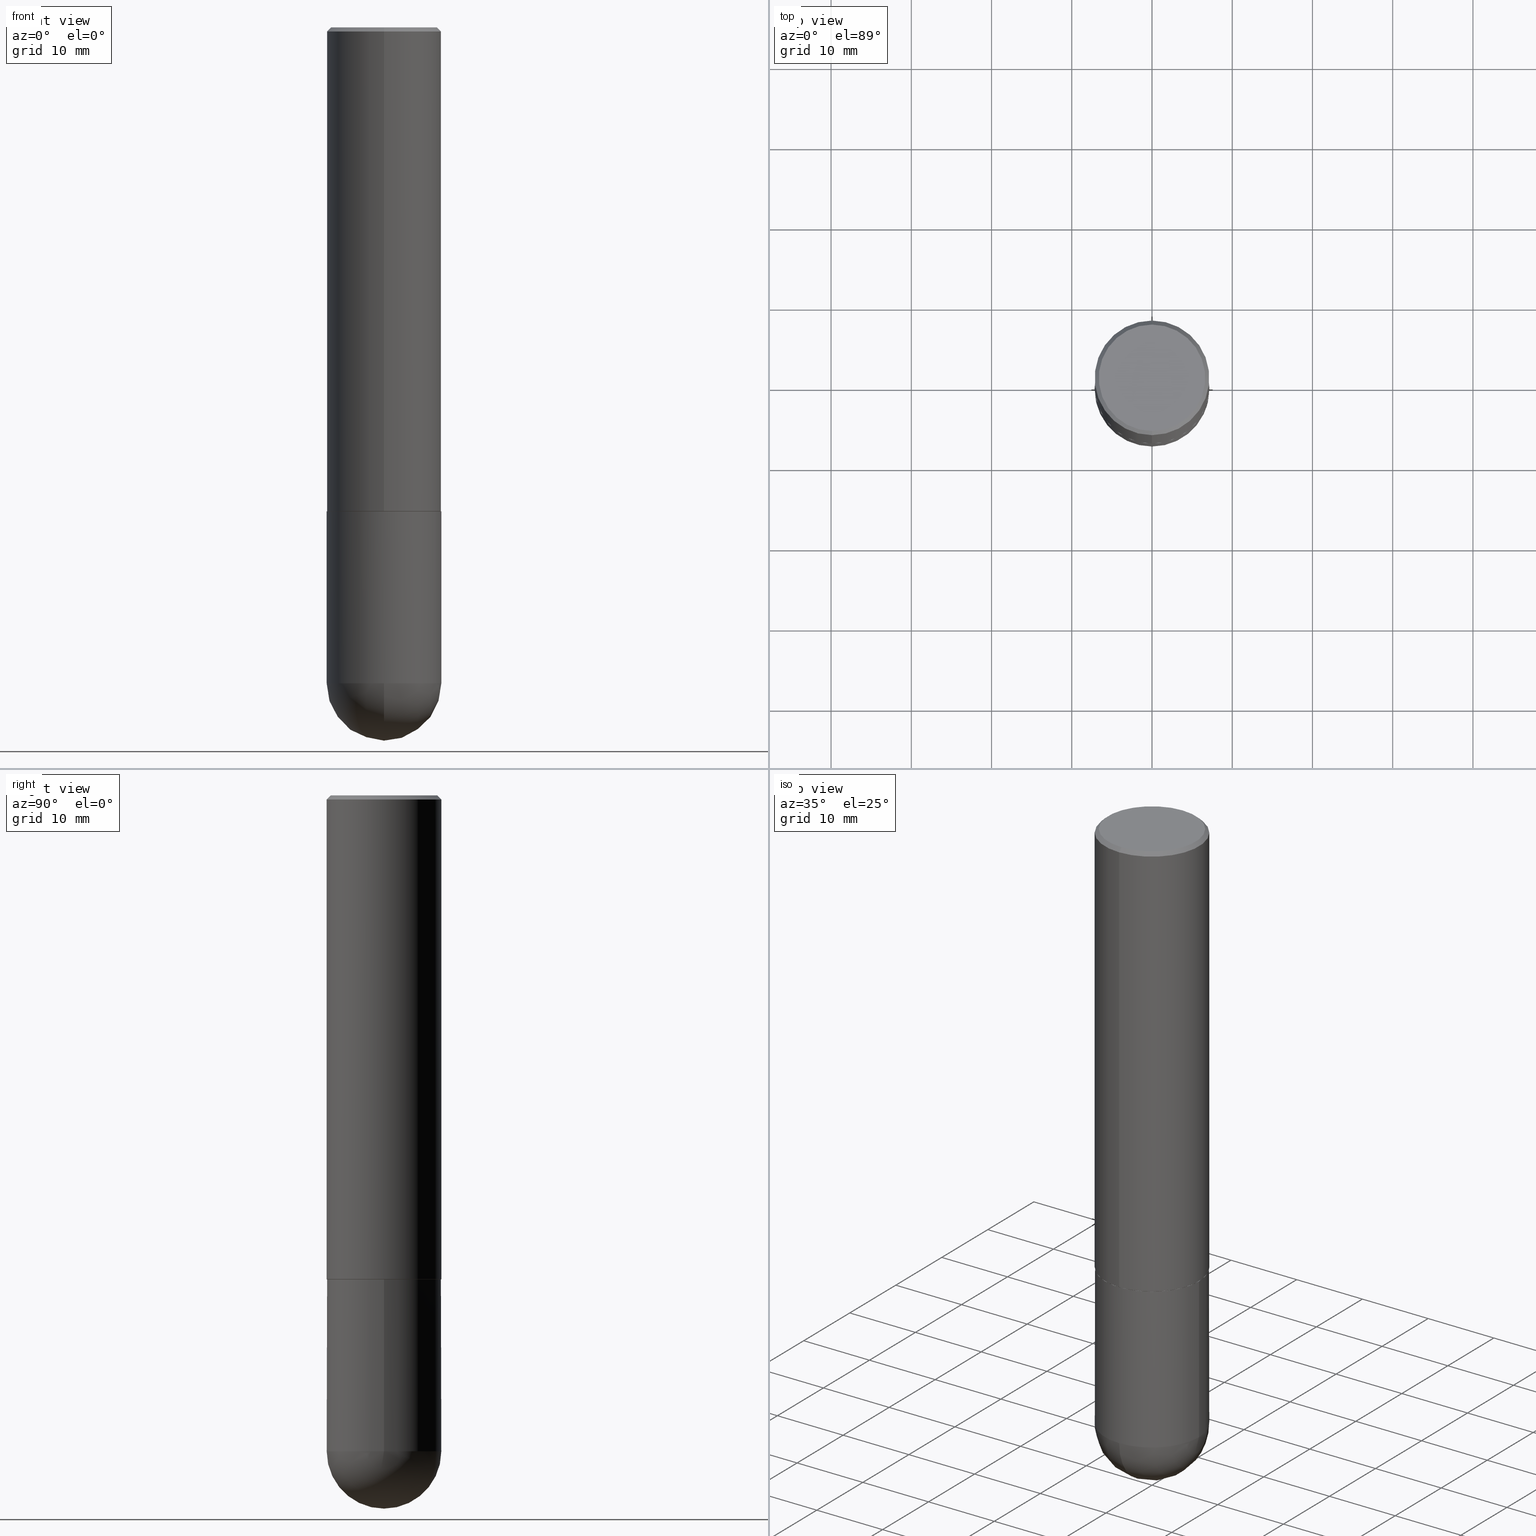
[diagram: canonical four-view strip — front | top / right | iso, engineering-drawing reading convention]
A machine part, canonical four-view strip (front | top / right | iso — engineering-drawing reading convention). The complete STEP part file that produces these views, byte-faithful:
ISO-10303-21;
HEADER;
FILE_DESCRIPTION (( 'STEP AP203' ),
    '1' );
FILE_NAME ('36847.STEP',
    '2024-02-21T19:08:04',
    ( '' ),
    ( '' ),
    'SwSTEP 2.0',
    'SolidWorks 2023',
    '' );
FILE_SCHEMA (( 'CONFIG_CONTROL_DESIGN' ));
ENDSEC;

DATA;
#1 = CARTESIAN_POINT ( 'NONE',  ( 4.382219202564076479E-45, -6.257564182083579775E-31, -1.792106157134673927E-16 ) ) ;
#2 = VERTEX_POINT ( 'NONE', #350 ) ;
#3 = AXIS2_PLACEMENT_3D ( 'NONE', #206, #332, #47 ) ;
#4 = ORIENTED_EDGE ( 'NONE', *, *, #392, .T. ) ;
#5 = AXIS2_PLACEMENT_3D ( 'NONE', #27, #259, #374 ) ;
#6 = EDGE_CURVE ( 'NONE', #20, #155, #185, .T. ) ;
#7 = CARTESIAN_POINT ( 'NONE',  ( 7.540232941994521053E-29, -1.171238792754142562E-14, -3.218749999999999556 ) ) ;
#8 = DIRECTION ( 'NONE',  ( -2.445468806185136597E-29, 3.491481338843145583E-15, 1.000000000000000000 ) ) ;
#9 = MECHANICAL_CONTEXT ( 'NONE', #108, 'mechanical' ) ;
#10 = VECTOR ( 'NONE', #120, 39.37007874015748143 ) ;
#11 =( NAMED_UNIT ( * ) PLANE_ANGLE_UNIT ( ) SI_UNIT ( $, .RADIAN. ) );
#12 = SPHERICAL_SURFACE ( 'NONE', #109, 0.2812500000000003331 ) ;
#13 = AXIS2_PLACEMENT_3D ( 'NONE', #270, #388, #236 ) ;
#14 = FACE_OUTER_BOUND ( 'NONE', #293, .T. ) ;
#15 = COORDINATED_UNIVERSAL_TIME_OFFSET ( 5, 0, .BEHIND. ) ;
#16 = CARTESIAN_POINT ( 'NONE',  ( 7.540232941994521053E-29, -1.171238792754142562E-14, -3.218749999999999556 ) ) ;
#17 = EDGE_CURVE ( 'NONE', #129, #151, #356, .T. ) ;
#18 = ORIENTED_EDGE ( 'NONE', *, *, #29, .T. ) ;
#19 = CARTESIAN_POINT ( 'NONE',  ( -1.956975290421518122E-15, -0.2802500000000083258, -2.374999999999998668 ) ) ;
#20 = VERTEX_POINT ( 'NONE', #198 ) ;
#21 = PERSON_AND_ORGANIZATION ( #82, #148 ) ;
#22 = CONICAL_SURFACE ( 'NONE', #57, 0.2802499999999999991, 0.7853981633975678500 ) ;
#23 = PERSON_AND_ORGANIZATION ( #82, #148 ) ;
#24 = CIRCLE ( 'NONE', #5, 0.2812500000000000555 ) ;
#25 = CARTESIAN_POINT ( 'NONE',  ( 1.963958253099340610E-15, 0.2812499999999886757, -3.218750000000000888 ) ) ;
#26 = ORIENTED_EDGE ( 'NONE', *, *, #314, .F. ) ;
#27 = CARTESIAN_POINT ( 'NONE',  ( 4.890579930343684363E-31, -6.983474898706407953E-17, -0.02000000000000006287 ) ) ;
#28 = VERTEX_POINT ( 'NONE', #324 ) ;
#29 = EDGE_CURVE ( 'NONE', #147, #383, #246, .T. ) ;
#30 = DIRECTION ( 'NONE',  ( -2.445289965171834089E-29, 3.491737449353193105E-15, 1.000000000000000000 ) ) ;
#31 = ORIENTED_EDGE ( 'NONE', *, *, #197, .T. ) ;
#32 = CC_DESIGN_PERSON_AND_ORGANIZATION_ASSIGNMENT ( #23, #283, ( #390 ) ) ;
#33 = LINE ( 'NONE', #252, #174 ) ;
#34 = APPROVAL_PERSON_ORGANIZATION ( #244, #321, #124 ) ;
#35 = EDGE_LOOP ( 'NONE', ( #37, #93, #64, #117 ) ) ;
#36 = CARTESIAN_POINT ( 'NONE',  ( 0.2812500000000000555, -1.963958253099262907E-15, 1.371424718192607012E-29 ) ) ;
#37 = ORIENTED_EDGE ( 'NONE', *, *, #392, .F. ) ;
#38 = DIRECTION ( 'NONE',  ( 1.000000000000000000, -6.982962677686268288E-15, 0.000000000000000000 ) ) ;
#39 = CARTESIAN_POINT ( 'NONE',  ( 5.807563667283104946E-29, -8.292876442213832244E-15, -2.374999999999999556 ) ) ;
#40 = DIRECTION ( 'NONE',  ( -2.445468806185136877E-29, 3.491481338843145188E-15, 1.000000000000000000 ) ) ;
#41 = CC_DESIGN_APPROVAL ( #95, ( #352 ) ) ;
#42 = ADVANCED_FACE ( 'NONE', ( #102 ), #12, .T. ) ;
#43 = ADVANCED_FACE ( 'NONE', ( #412 ), #290, .T. ) ;
#44 =( NAMED_UNIT ( * ) SI_UNIT ( $, .STERADIAN. ) SOLID_ANGLE_UNIT ( ) );
#45 = CIRCLE ( 'NONE', #58, 0.2812500000000000555 ) ;
#46 = CARTESIAN_POINT ( 'NONE',  ( -1.860910081895528315E-15, -0.2612500000000002043, 7.330057929300550377E-16 ) ) ;
#47 = DIRECTION ( 'NONE',  ( 6.982962677686265133E-15, 1.000000000000000000, 0.000000000000000000 ) ) ;
#48 = EDGE_CURVE ( 'NONE', #195, #224, #336, .T. ) ;
#49 = APPROVAL_ROLE ( '' ) ;
#50 = DIRECTION ( 'NONE',  ( 6.982962677686265133E-15, 1.000000000000000000, -3.490694658571002410E-15 ) ) ;
#51 = LOCAL_TIME ( 14, 8, 4.000000000000000000, #398 ) ;
#52 = APPROVAL_STATUS ( 'not_yet_approved' ) ;
#53 = APPROVAL ( #111, 'UNSPECIFIED' ) ;
#54 = CARTESIAN_POINT ( 'NONE',  ( 5.807563667283104946E-29, -8.292876442213832244E-15, -2.374999999999999556 ) ) ;
#55 = DATE_AND_TIME ( #340, #51 ) ;
#56 = DIRECTION ( 'NONE',  ( -6.982962677686265133E-15, -1.000000000000000000, 3.885294924322502955E-15 ) ) ;
#57 = AXIS2_PLACEMENT_3D ( 'NONE', #54, #90, #291 ) ;
#58 = AXIS2_PLACEMENT_3D ( 'NONE', #169, #191, #38 ) ;
#59 = DIRECTION ( 'NONE',  ( -6.982962677686265133E-15, -1.000000000000000000, 3.491737449353193105E-15 ) ) ;
#60 = ADVANCED_FACE ( 'NONE', ( #14 ), #277, .T. ) ;
#61 = APPROVAL_ROLE ( '' ) ;
#62 = DATE_AND_TIME ( #345, #268 ) ;
#63 = FACE_OUTER_BOUND ( 'NONE', #320, .T. ) ;
#64 = ORIENTED_EDGE ( 'NONE', *, *, #348, .T. ) ;
#65 = DIRECTION ( 'NONE',  ( -2.445289965171834089E-29, 3.491737449353193105E-15, 1.000000000000000000 ) ) ;
#66 = ORIENTED_EDGE ( 'NONE', *, *, #106, .F. ) ;
#67 = CARTESIAN_POINT ( 'NONE',  ( 0.000000000000000000, 0.000000000000000000, 0.000000000000000000 ) ) ;
#68 = ORIENTED_EDGE ( 'NONE', *, *, #232, .F. ) ;
#69 = CARTESIAN_POINT ( 'NONE',  ( 0.000000000000000000, 0.000000000000000000, 0.000000000000000000 ) ) ;
#70 = DIRECTION ( 'NONE',  ( 1.000000000000000000, -6.982962677686266711E-15, 0.000000000000000000 ) ) ;
#71 = DIRECTION ( 'NONE',  ( 2.438088387897960049E-29, -3.491481338843145188E-15, -1.000000000000000000 ) ) ;
#72 =( CONVERSION_BASED_UNIT ( 'INCH', #269 ) LENGTH_UNIT ( ) NAMED_UNIT ( #406 ) );
#73 = VECTOR ( 'NONE', #94, 39.37007874015748854 ) ;
#74 = PERSON_AND_ORGANIZATION_ROLE ( 'design_owner' ) ;
#75 = CC_DESIGN_PERSON_AND_ORGANIZATION_ASSIGNMENT ( #342, #153, ( #352 ) ) ;
#76 = SPHERICAL_SURFACE ( 'NONE', #372, 0.2812500000000003331 ) ;
#77 = DIRECTION ( 'NONE',  ( 2.445289965171834089E-29, -3.491737449353193105E-15, -1.000000000000000000 ) ) ;
#78 = ADVANCED_FACE ( 'NONE', ( #203 ), #330, .F. ) ;
#79 = SHAPE_DEFINITION_REPRESENTATION ( #164, #121 ) ;
#80 = EDGE_LOOP ( 'NONE', ( #400, #375, #242, #243, #188 ) ) ;
#81 = CARTESIAN_POINT ( 'NONE',  ( 7.871352719908407300E-29, -1.123820555940137375E-14, -3.218749999999999556 ) ) ;
#82 = PERSON ( 'UNSPECIFIED', 'UNSPECIFIED', 'UNSPECIFIED', ('UNSPECIFIED'), ('UNSPECIFIED'), ('UNSPECIFIED') ) ;
#83 = PERSON_AND_ORGANIZATION_ROLE ( 'creator' ) ;
#84 = CARTESIAN_POINT ( 'NONE',  ( 5.807563667283104946E-29, -8.292876442213832244E-15, -2.374999999999999556 ) ) ;
#85 = PERSON_AND_ORGANIZATION_ROLE ( 'design_supplier' ) ;
#86 = CARTESIAN_POINT ( 'NONE',  ( 7.871352719908407300E-29, -1.123820555940137375E-14, -3.218749999999999556 ) ) ;
#87 = EDGE_LOOP ( 'NONE', ( #322, #18, #373, #126 ) ) ;
#88 = CIRCLE ( 'NONE', #247, 0.2812500000000000555 ) ;
#89 =( GEOMETRIC_REPRESENTATION_CONTEXT ( 3 ) GLOBAL_UNCERTAINTY_ASSIGNED_CONTEXT ( ( #318 ) ) GLOBAL_UNIT_ASSIGNED_CONTEXT ( ( #72, #11, #44 ) ) REPRESENTATION_CONTEXT ( 'NONE', 'WORKASPACE' ) );
#90 = DIRECTION ( 'NONE',  ( -2.445289965171834089E-29, 3.491737449353193105E-15, 1.000000000000000000 ) ) ;
#91 = ORIENTED_EDGE ( 'NONE', *, *, #314, .T. ) ;
#92 = DIRECTION ( 'NONE',  ( -6.982962677686265922E-15, -1.000000000000000000, 3.899158599342391639E-15 ) ) ;
#93 = ORIENTED_EDGE ( 'NONE', *, *, #326, .F. ) ;
#94 = DIRECTION ( 'NONE',  ( 4.937700262164543309E-15, 0.7071067811865444641, -0.7071067811865503483 ) ) ;
#95 = APPROVAL ( #282, 'UNSPECIFIED' ) ;
#96 = AXIS2_PLACEMENT_3D ( 'NONE', #133, #261, #380 ) ;
#97 = FACE_OUTER_BOUND ( 'NONE', #307, .T. ) ;
#98 = CONICAL_SURFACE ( 'NONE', #210, 0.2812500000000000555, 0.7853981633974476129 ) ;
#99 = ORIENTED_EDGE ( 'NONE', *, *, #48, .T. ) ;
#100 = DIRECTION ( 'NONE',  ( 1.000000000000000000, -6.982962677686268288E-15, 0.000000000000000000 ) ) ;
#101 = ORIENTED_EDGE ( 'NONE', *, *, #381, .T. ) ;
#102 = FACE_OUTER_BOUND ( 'NONE', #251, .T. ) ;
#103 = FACE_OUTER_BOUND ( 'NONE', #287, .T. ) ;
#104 = AXIS2_PLACEMENT_3D ( 'NONE', #112, #77, #50 ) ;
#105 = MANIFOLD_SOLID_BREP ( 'Body-Move/Copy2[1]', #389 ) ;
#106 = EDGE_CURVE ( 'NONE', #337, #216, #379, .T. ) ;
#107 = DIRECTION ( 'NONE',  ( -6.982962677686265133E-15, -1.000000000000000000, 3.885294924322502955E-15 ) ) ;
#108 = APPLICATION_CONTEXT ( 'configuration controlled 3d designs of mechanical parts and assemblies' ) ;
#109 = AXIS2_PLACEMENT_3D ( 'NONE', #16, #140, #180 ) ;
#110 = VECTOR ( 'NONE', #299, 39.37007874015748143 ) ;
#111 = APPROVAL_STATUS ( 'not_yet_approved' ) ;
#112 = CARTESIAN_POINT ( 'NONE',  ( 4.890579930343684363E-31, -6.983474898706407953E-17, -0.02000000000000006287 ) ) ;
#113 = ORIENTED_EDGE ( 'NONE', *, *, #361, .F. ) ;
#114 = ORIENTED_EDGE ( 'NONE', *, *, #292, .F. ) ;
#115 = CALENDAR_DATE ( 2024, 21, 2 ) ;
#116 = CARTESIAN_POINT ( 'NONE',  ( -1.998401444325206042E-15, -0.2812500000000116573, -3.218749999999998668 ) ) ;
#117 = ORIENTED_EDGE ( 'NONE', *, *, #241, .T. ) ;
#118 = CIRCLE ( 'NONE', #297, 0.2802499999999999991 ) ;
#119 = APPROVAL_PERSON_ORGANIZATION ( #334, #53, #49 ) ;
#120 = DIRECTION ( 'NONE',  ( -2.445289965171834089E-29, 3.491737449353193105E-15, 1.000000000000000000 ) ) ;
#121 = ADVANCED_BREP_SHAPE_REPRESENTATION ( '36847', ( #105, #377, #386 ), #89 ) ;
#122 = CYLINDRICAL_SURFACE ( 'NONE', #168, 0.2812500000000000555 ) ;
#123 = APPROVAL_DATE_TIME ( #362, #95 ) ;
#124 = APPROVAL_ROLE ( '' ) ;
#125 = DIRECTION ( 'NONE',  ( 2.445289965171834089E-29, -3.491737449353193105E-15, -1.000000000000000000 ) ) ;
#126 = ORIENTED_EDGE ( 'NONE', *, *, #139, .F. ) ;
#127 = AXIS2_PLACEMENT_3D ( 'NONE', #69, #162, #294 ) ;
#128 = DIRECTION ( 'NONE',  ( 1.000000000000000000, -6.982962677686268288E-15, 0.000000000000000000 ) ) ;
#129 = VERTEX_POINT ( 'NONE', #182 ) ;
#130 = LINE ( 'NONE', #36, #186 ) ;
#131 = ORIENTED_EDGE ( 'NONE', *, *, #6, .F. ) ;
#132 = PRODUCT_DEFINITION ( 'UNKNOWN', '', #390, #159 ) ;
#133 = CARTESIAN_POINT ( 'NONE',  ( 4.890579930343684363E-31, -6.983474898706407953E-17, -0.02000000000000006287 ) ) ;
#134 = CARTESIAN_POINT ( 'NONE',  ( 0.2812500000000000555, -1.172919512267618602E-14, -3.218749999999999556 ) ) ;
#135 = ORIENTED_EDGE ( 'NONE', *, *, #361, .T. ) ;
#136 = DIRECTION ( 'NONE',  ( -1.000000000000000000, 6.982962677686265922E-15, -4.876176775795935793E-29 ) ) ;
#137 = AXIS2_PLACEMENT_3D ( 'NONE', #39, #257, #220 ) ;
#138 = AXIS2_PLACEMENT_3D ( 'NONE', #221, #192, #279 ) ;
#139 = EDGE_CURVE ( 'NONE', #224, #195, #209, .T. ) ;
#140 = DIRECTION ( 'NONE',  ( -1.000000000000000000, 6.982962677686265922E-15, -4.883557194083112901E-29 ) ) ;
#141 = CC_DESIGN_SECURITY_CLASSIFICATION ( #352, ( #390 ) ) ;
#142 = EDGE_CURVE ( 'NONE', #404, #2, #256, .T. ) ;
#143 = CALENDAR_DATE ( 2024, 21, 2 ) ;
#144 = ORIENTED_EDGE ( 'NONE', *, *, #197, .F. ) ;
#145 = APPROVAL_DATE_TIME ( #249, #53 ) ;
#146 = DIRECTION ( 'NONE',  ( -4.937700262165138110E-15, -0.7071067811866296182, 0.7071067811864654162 ) ) ;
#147 = VERTEX_POINT ( 'NONE', #319 ) ;
#148 = ORGANIZATION ( 'UNSPECIFIED', 'UNSPECIFIED', '' ) ;
#149 = DATE_AND_TIME ( #115, #301 ) ;
#150 = DIRECTION ( 'NONE',  ( -2.445468806185136597E-29, 3.491481338843145583E-15, 1.000000000000000000 ) ) ;
#151 = VERTEX_POINT ( 'NONE', #187 ) ;
#152 = ADVANCED_FACE ( 'NONE', ( #343 ), #238, .T. ) ;
#153 = PERSON_AND_ORGANIZATION_ROLE ( 'classification_officer' ) ;
#154 = FACE_OUTER_BOUND ( 'NONE', #355, .T. ) ;
#155 = VERTEX_POINT ( 'NONE', #157 ) ;
#156 = ADVANCED_FACE ( 'NONE', ( #154 ), #306, .F. ) ;
#157 = CARTESIAN_POINT ( 'NONE',  ( 1.963958253099263301E-15, 0.2812499999999999445, -0.02000000000000104472 ) ) ;
#158 = ORIENTED_EDGE ( 'NONE', *, *, #381, .F. ) ;
#159 = DESIGN_CONTEXT ( 'detailed design', #222, 'design' ) ;
#160 = DIRECTION ( 'NONE',  ( 6.982962677686265922E-15, 1.000000000000000000, -3.491737449353193105E-15 ) ) ;
#161 = ORIENTED_EDGE ( 'NONE', *, *, #241, .F. ) ;
#162 = DIRECTION ( 'NONE',  ( -2.445289965171834089E-29, 3.491737449353193105E-15, 1.000000000000000000 ) ) ;
#163 = ORIENTED_EDGE ( 'NONE', *, *, #142, .F. ) ;
#164 = PRODUCT_DEFINITION_SHAPE ( 'NONE', 'NONE',  #132 ) ;
#165 = CARTESIAN_POINT ( 'NONE',  ( 1.963958253099263301E-15, 0.2812499999999999445, -0.02000000000000104472 ) ) ;
#166 = EDGE_LOOP ( 'NONE', ( #158, #305, #193, #113 ) ) ;
#167 = ADVANCED_FACE ( 'NONE', ( #63 ), #122, .T. ) ;
#168 = AXIS2_PLACEMENT_3D ( 'NONE', #212, #403, #215 ) ;
#169 = CARTESIAN_POINT ( 'NONE',  ( 7.871352719908407300E-29, -1.123820555940137375E-14, -3.218749999999999556 ) ) ;
#170 = AXIS2_PLACEMENT_3D ( 'NONE', #354, #71, #136 ) ;
#171 = CC_DESIGN_PERSON_AND_ORGANIZATION_ASSIGNMENT ( #308, #83, ( #132 ) ) ;
#172 = CARTESIAN_POINT ( 'NONE',  ( -0.2812500000000000555, 1.998401444325282167E-15, -1.383450494134192269E-29 ) ) ;
#173 = ADVANCED_FACE ( 'NONE', ( #405 ), #22, .T. ) ;
#174 = VECTOR ( 'NONE', #367, 39.37007874015748143 ) ;
#175 = COORDINATED_UNIVERSAL_TIME_OFFSET ( 5, 0, .BEHIND. ) ;
#176 = CARTESIAN_POINT ( 'NONE',  ( 5.805118377317934048E-29, -8.289384704764479021E-15, -2.373999999999999666 ) ) ;
#177 = AXIS2_PLACEMENT_3D ( 'NONE', #84, #30, #286 ) ;
#178 = VECTOR ( 'NONE', #366, 39.37007874015748143 ) ;
#179 = ORIENTED_EDGE ( 'NONE', *, *, #239, .T. ) ;
#180 = DIRECTION ( 'NONE',  ( 6.982962677686265922E-15, 1.000000000000000000, -3.885294924322502955E-15 ) ) ;
#181 = ORIENTED_EDGE ( 'NONE', *, *, #329, .T. ) ;
#182 = CARTESIAN_POINT ( 'NONE',  ( 0.2812500000000000000, -1.025622643285173184E-14, -2.374999999999999556 ) ) ;
#183 = LINE ( 'NONE', #19, #274 ) ;
#184 = CC_DESIGN_PERSON_AND_ORGANIZATION_ASSIGNMENT ( #402, #85, ( #390 ) ) ;
#185 = CIRCLE ( 'NONE', #96, 0.2812500000000000555 ) ;
#186 = VECTOR ( 'NONE', #40, 39.37007874015748143 ) ;
#187 = CARTESIAN_POINT ( 'NONE',  ( -0.2812500000000000000, -7.766835425251639371E-15, -2.374999999999999556 ) ) ;
#188 = ORIENTED_EDGE ( 'NONE', *, *, #202, .T. ) ;
#189 = DIRECTION ( 'NONE',  ( -2.445468806185136597E-29, 3.491481338843145583E-15, 1.000000000000000000 ) ) ;
#190 = ORIENTED_EDGE ( 'NONE', *, *, #142, .T. ) ;
#192 = DIRECTION ( 'NONE',  ( -2.445468806185136597E-29, 3.491481338843145583E-15, 1.000000000000000000 ) ) ;
#191 = DIRECTION ( 'NONE',  ( -2.445468806185136597E-29, 3.491481338843145583E-15, 1.000000000000000000 ) ) ;
#193 = ORIENTED_EDGE ( 'NONE', *, *, #202, .F. ) ;
#194 = CYLINDRICAL_SURFACE ( 'NONE', #127, 0.2812500000000001665 ) ;
#195 = VERTEX_POINT ( 'NONE', #255 ) ;
#196 = CARTESIAN_POINT ( 'NONE',  ( 8.240046819675677659E-29, -1.267714545847805119E-14, -3.500000000000000000 ) ) ;
#197 = EDGE_CURVE ( 'NONE', #383, #147, #118, .T. ) ;
#198 = CARTESIAN_POINT ( 'NONE',  ( -1.929515061873242857E-15, -0.2812500000000001110, -0.01999999999999908101 ) ) ;
#199 = AXIS2_PLACEMENT_3D ( 'NONE', #219, #346, #56 ) ;
#200 = AXIS2_PLACEMENT_3D ( 'NONE', #229, #353, #70 ) ;
#201 = CYLINDRICAL_SURFACE ( 'NONE', #240, 0.2812500000000000555 ) ;
#202 = EDGE_CURVE ( 'NONE', #347, #216, #344, .T. ) ;
#203 = FACE_OUTER_BOUND ( 'NONE', #395, .T. ) ;
#204 = APPLICATION_PROTOCOL_DEFINITION ( 'international standard', 'config_control_design', 1994, #108 ) ;
#205 = AXIS2_PLACEMENT_3D ( 'NONE', #176, #304, #107 ) ;
#206 = CARTESIAN_POINT ( 'NONE',  ( 7.540232941994521053E-29, -1.171238792754142562E-14, -3.218749999999999556 ) ) ;
#207 = DIRECTION ( 'NONE',  ( -1.000000000000000000, 6.982962677686265922E-15, -4.883557194083112901E-29 ) ) ;
#208 = DATE_TIME_ROLE ( 'classification_date' ) ;
#209 = CIRCLE ( 'NONE', #199, 0.2812500000000003331 ) ;
#210 = AXIS2_PLACEMENT_3D ( 'NONE', #369, #125, #341 ) ;
#211 = ORIENTED_EDGE ( 'NONE', *, *, #6, .T. ) ;
#212 = CARTESIAN_POINT ( 'NONE',  ( 0.000000000000000000, 0.000000000000000000, 0.000000000000000000 ) ) ;
#213 = FACE_OUTER_BOUND ( 'NONE', #80, .T. ) ;
#214 = SECURITY_CLASSIFICATION_LEVEL ( 'unclassified' ) ;
#215 = DIRECTION ( 'NONE',  ( 1.000000000000000000, -6.982962677686266711E-15, 4.876176775795935232E-29 ) ) ;
#216 = VERTEX_POINT ( 'NONE', #25 ) ;
#217 = AXIS2_PLACEMENT_3D ( 'NONE', #339, #312, #59 ) ;
#218 = APPROVAL_PERSON_ORGANIZATION ( #21, #95, #61 ) ;
#219 = CARTESIAN_POINT ( 'NONE',  ( 5.805118377317934048E-29, -8.289384704764479021E-15, -2.373999999999999666 ) ) ;
#220 = DIRECTION ( 'NONE',  ( -6.982962677686265922E-15, -1.000000000000000000, 3.899158599342391639E-15 ) ) ;
#221 = CARTESIAN_POINT ( 'NONE',  ( 5.807988414689698296E-29, -8.292268179752468540E-15, -2.374999999999999556 ) ) ;
#222 = APPLICATION_CONTEXT ( 'configuration controlled 3d designs of mechanical parts and assemblies' ) ;
#223 = PRODUCT ( '36847', '36847', '', ( #9 ) ) ;
#224 = VERTEX_POINT ( 'NONE', #408 ) ;
#225 = CARTESIAN_POINT ( 'NONE',  ( 7.871352719908407300E-29, -1.123820555940137375E-14, -3.218749999999999556 ) ) ;
#226 = ORIENTED_EDGE ( 'NONE', *, *, #17, .T. ) ;
#227 = CC_DESIGN_APPROVAL ( #53, ( #132 ) ) ;
#228 = CARTESIAN_POINT ( 'NONE',  ( -1.929515061873242857E-15, -0.2812500000000001110, -0.01999999999999908101 ) ) ;
#229 = CARTESIAN_POINT ( 'NONE',  ( 5.807988414689698296E-29, -8.292268179752468540E-15, -2.374999999999999556 ) ) ;
#230 = CARTESIAN_POINT ( 'NONE',  ( -1.956975290421518122E-15, -0.2802500000000083258, -2.374999999999998668 ) ) ;
#231 = VERTEX_POINT ( 'NONE', #116 ) ;
#232 = EDGE_CURVE ( 'NONE', #216, #28, #88, .T. ) ;
#233 = CIRCLE ( 'NONE', #138, 0.2812500000000000000 ) ;
#234 = DIRECTION ( 'NONE',  ( -2.445289965171834089E-29, 3.491737449353193105E-15, 1.000000000000000000 ) ) ;
#235 = DIRECTION ( 'NONE',  ( 0.000000000000000000, 0.000000000000000000, 1.000000000000000000 ) ) ;
#236 = DIRECTION ( 'NONE',  ( -6.982962677686265922E-15, -1.000000000000000000, 3.491737449353193105E-15 ) ) ;
#237 = PERSON_AND_ORGANIZATION ( #82, #148 ) ;
#238 = CONICAL_SURFACE ( 'NONE', #177, 0.2802499999999999991, 0.7853981633975678500 ) ;
#239 = EDGE_CURVE ( 'NONE', #195, #20, #284, .T. ) ;
#240 = AXIS2_PLACEMENT_3D ( 'NONE', #67, #410, #378 ) ;
#241 = EDGE_CURVE ( 'NONE', #155, #20, #24, .T. ) ;
#242 = ORIENTED_EDGE ( 'NONE', *, *, #17, .F. ) ;
#243 = ORIENTED_EDGE ( 'NONE', *, *, #329, .F. ) ;
#244 = PERSON_AND_ORGANIZATION ( #82, #148 ) ;
#245 = CARTESIAN_POINT ( 'NONE',  ( -1.963958253099263696E-15, -0.2812500000000001665, 9.820511576305861032E-16 ) ) ;
#246 = CIRCLE ( 'NONE', #137, 0.2802499999999999991 ) ;
#247 = AXIS2_PLACEMENT_3D ( 'NONE', #86, #150, #128 ) ;
#248 = CC_DESIGN_DATE_AND_TIME_ASSIGNMENT ( #62, #208, ( #352 ) ) ;
#249 = DATE_AND_TIME ( #278, #357 ) ;
#250 = LINE ( 'NONE', #399, #10 ) ;
#251 = EDGE_LOOP ( 'NONE', ( #66, #101, #26, #68 ) ) ;
#252 = CARTESIAN_POINT ( 'NONE',  ( 1.991296016967738351E-15, 0.2802499999999917280, -2.375000000000000888 ) ) ;
#253 = ORIENTED_EDGE ( 'NONE', *, *, #292, .T. ) ;
#254 = COORDINATED_UNIVERSAL_TIME_OFFSET ( 5, 0, .BEHIND. ) ;
#255 = CARTESIAN_POINT ( 'NONE',  ( -1.963958253099206503E-15, -0.2812500000000086042, -2.373999999999998334 ) ) ;
#256 = CIRCLE ( 'NONE', #217, 0.2612500000000002043 ) ;
#257 = DIRECTION ( 'NONE',  ( -2.445289965171834089E-29, 3.491737449353193105E-15, 1.000000000000000000 ) ) ;
#258 = CIRCLE ( 'NONE', #365, 0.2812500000000000555 ) ;
#259 = DIRECTION ( 'NONE',  ( -2.445289965171834089E-29, 3.491737449353193105E-15, 1.000000000000000000 ) ) ;
#260 = EDGE_LOOP ( 'NONE', ( #31, #393, #411, #264 ) ) ;
#261 = DIRECTION ( 'NONE',  ( -2.445289965171834089E-29, 3.491737449353193105E-15, 1.000000000000000000 ) ) ;
#262 = EDGE_CURVE ( 'NONE', #383, #195, #183, .T. ) ;
#263 = DIRECTION ( 'NONE',  ( -1.000000000000000000, 7.105427357601001070E-15, -4.926315508542082329E-29 ) ) ;
#264 = ORIENTED_EDGE ( 'NONE', *, *, #262, .F. ) ;
#265 = DIRECTION ( 'NONE',  ( -7.105427357601001859E-15, -1.000000000000000000, 0.000000000000000000 ) ) ;
#266 = LINE ( 'NONE', #228, #310 ) ;
#267 = CLOSED_SHELL ( 'NONE', ( #152, #60, #276, #43, #396, #173, #78, #156 ) ) ;
#268 = LOCAL_TIME ( 14, 8, 4.000000000000000000, #254 ) ;
#269 = LENGTH_MEASURE_WITH_UNIT ( LENGTH_MEASURE( 0.02539999999999999897 ), #300 );
#270 = CARTESIAN_POINT ( 'NONE',  ( 5.807563667283104946E-29, -8.292876442213832244E-15, -2.374999999999999556 ) ) ;
#271 = EDGE_CURVE ( 'NONE', #147, #224, #33, .T. ) ;
#272 = APPLICATION_PROTOCOL_DEFINITION ( 'international standard', 'config_control_design', 1994, #222 ) ;
#273 = AXIS2_PLACEMENT_3D ( 'NONE', #81, #189, #316 ) ;
#274 = VECTOR ( 'NONE', #146, 39.37007874015748143 ) ;
#275 = CARTESIAN_POINT ( 'NONE',  ( 0.000000000000000000, 0.000000000000000000, 0.000000000000000000 ) ) ;
#276 = ADVANCED_FACE ( 'NONE', ( #309 ), #98, .T. ) ;
#277 = CYLINDRICAL_SURFACE ( 'NONE', #397, 0.2812500000000001665 ) ;
#278 = CALENDAR_DATE ( 2024, 21, 2 ) ;
#279 = DIRECTION ( 'NONE',  ( 1.000000000000000000, -6.982962677686266711E-15, 0.000000000000000000 ) ) ;
#280 = AXIS2_PLACEMENT_3D ( 'NONE', #7, #263, #265 ) ;
#281 = ORIENTED_EDGE ( 'NONE', *, *, #29, .F. ) ;
#282 = APPROVAL_STATUS ( 'not_yet_approved' ) ;
#283 = PERSON_AND_ORGANIZATION_ROLE ( 'creator' ) ;
#284 = LINE ( 'NONE', #245, #178 ) ;
#285 = DATE_TIME_ROLE ( 'creation_date' ) ;
#286 = DIRECTION ( 'NONE',  ( -6.982962677686265922E-15, -1.000000000000000000, 3.899158599342391639E-15 ) ) ;
#287 = EDGE_LOOP ( 'NONE', ( #114, #409, #179, #161 ) ) ;
#288 = EDGE_CURVE ( 'NONE', #151, #129, #233, .T. ) ;
#289 = CARTESIAN_POINT ( 'NONE',  ( 1.824298999545538283E-15, 0.2612500000000002043, -1.001821716500255930E-15 ) ) ;
#290 = CONICAL_SURFACE ( 'NONE', #104, 0.2812500000000000555, 0.7853981633974476129 ) ;
#291 = DIRECTION ( 'NONE',  ( -6.982962677686265922E-15, -1.000000000000000000, 3.899158599342391639E-15 ) ) ;
#292 = EDGE_CURVE ( 'NONE', #224, #155, #250, .T. ) ;
#293 = EDGE_LOOP ( 'NONE', ( #99, #253, #131, #295 ) ) ;
#294 = DIRECTION ( 'NONE',  ( -6.982962677686266711E-15, -1.000000000000000000, 3.491737449353193105E-15 ) ) ;
#295 = ORIENTED_EDGE ( 'NONE', *, *, #239, .F. ) ;
#296 = ORIENTED_EDGE ( 'NONE', *, *, #288, .F. ) ;
#297 = AXIS2_PLACEMENT_3D ( 'NONE', #349, #65, #92 ) ;
#298 = AXIS2_PLACEMENT_3D ( 'NONE', #1, #382, #325 ) ;
#299 = DIRECTION ( 'NONE',  ( -2.445468806185136877E-29, 3.491481338843145188E-15, 1.000000000000000000 ) ) ;
#300 =( LENGTH_UNIT ( ) NAMED_UNIT ( * ) SI_UNIT ( $, .METRE. ) );
#301 = LOCAL_TIME ( 14, 8, 4.000000000000000000, #338 ) ;
#302 = FACE_OUTER_BOUND ( 'NONE', #166, .T. ) ;
#303 = LOCAL_TIME ( 14, 8, 4.000000000000000000, #15 ) ;
#304 = DIRECTION ( 'NONE',  ( -2.445289965171834089E-29, 3.491737449353193105E-15, 1.000000000000000000 ) ) ;
#305 = ORIENTED_EDGE ( 'NONE', *, *, #106, .T. ) ;
#306 = PLANE ( 'NONE',  #364 ) ;
#307 = EDGE_LOOP ( 'NONE', ( #226, #407 ) ) ;
#308 = PERSON_AND_ORGANIZATION ( #82, #148 ) ;
#309 = FACE_OUTER_BOUND ( 'NONE', #317, .T. ) ;
#310 = VECTOR ( 'NONE', #385, 39.37007874015748854 ) ;
#311 = ADVANCED_FACE ( 'NONE', ( #213 ), #201, .T. ) ;
#312 = DIRECTION ( 'NONE',  ( -2.445289965171834089E-29, 3.491737449353193105E-15, 1.000000000000000000 ) ) ;
#313 = ORIENTED_EDGE ( 'NONE', *, *, #348, .F. ) ;
#314 = EDGE_CURVE ( 'NONE', #28, #231, #45, .T. ) ;
#315 = APPROVAL_DATE_TIME ( #55, #321 ) ;
#316 = DIRECTION ( 'NONE',  ( 1.000000000000000000, -6.982962677686268288E-15, 0.000000000000000000 ) ) ;
#317 = EDGE_LOOP ( 'NONE', ( #163, #4, #211, #313 ) ) ;
#318 = UNCERTAINTY_MEASURE_WITH_UNIT (LENGTH_MEASURE( 1.000000000000000082E-05 ), #72, 'distance_accuracy_value', 'NONE');
#319 = CARTESIAN_POINT ( 'NONE',  ( 1.994848730646540039E-15, 0.2802499999999917280, -2.375000000000000888 ) ) ;
#320 = EDGE_LOOP ( 'NONE', ( #368, #91, #135, #181, #296 ) ) ;
#321 = APPROVAL ( #52, 'UNSPECIFIED' ) ;
#322 = ORIENTED_EDGE ( 'NONE', *, *, #271, .F. ) ;
#323 = LINE ( 'NONE', #165, #73 ) ;
#324 = CARTESIAN_POINT ( 'NONE',  ( -0.2812500000000000555, -7.766835425251640949E-15, -3.218749999999999556 ) ) ;
#325 = DIRECTION ( 'NONE',  ( -6.982962677686265133E-15, -1.000000000000000000, 3.491737449353193105E-15 ) ) ;
#326 = EDGE_CURVE ( 'NONE', #2, #404, #331, .T. ) ;
#327 = CC_DESIGN_APPROVAL ( #321, ( #390 ) ) ;
#328 = DIRECTION ( 'NONE',  ( 6.982962677686265922E-15, 1.000000000000000000, -3.885294924322502955E-15 ) ) ;
#329 = EDGE_CURVE ( 'NONE', #347, #129, #130, .T. ) ;
#330 = PLANE ( 'NONE',  #13 ) ;
#331 = CIRCLE ( 'NONE', #298, 0.2612500000000002043 ) ;
#332 = DIRECTION ( 'NONE',  ( 1.000000000000000000, -6.982962677686265922E-15, 4.883557194083112340E-29 ) ) ;
#333 = CC_DESIGN_PERSON_AND_ORGANIZATION_ASSIGNMENT ( #237, #74, ( #223 ) ) ;
#334 = PERSON_AND_ORGANIZATION ( #82, #148 ) ;
#335 = EDGE_CURVE ( 'NONE', #28, #151, #376, .T. ) ;
#336 = CIRCLE ( 'NONE', #205, 0.2812500000000003331 ) ;
#337 = VERTEX_POINT ( 'NONE', #196 ) ;
#338 = COORDINATED_UNIVERSAL_TIME_OFFSET ( 5, 0, .BEHIND. ) ;
#339 = CARTESIAN_POINT ( 'NONE',  ( 4.382219202564076479E-45, -6.257564182083579775E-31, -1.792106157134673927E-16 ) ) ;
#340 = CALENDAR_DATE ( 2024, 21, 2 ) ;
#341 = DIRECTION ( 'NONE',  ( 6.982962677686265133E-15, 1.000000000000000000, -3.490694658571002410E-15 ) ) ;
#342 = PERSON_AND_ORGANIZATION ( #82, #148 ) ;
#343 = FACE_OUTER_BOUND ( 'NONE', #260, .T. ) ;
#344 = CIRCLE ( 'NONE', #273, 0.2812500000000000555 ) ;
#345 = CALENDAR_DATE ( 2024, 21, 2 ) ;
#346 = DIRECTION ( 'NONE',  ( -2.445289965171834089E-29, 3.491737449353193105E-15, 1.000000000000000000 ) ) ;
#347 = VERTEX_POINT ( 'NONE', #134 ) ;
#348 = EDGE_CURVE ( 'NONE', #2, #155, #323, .T. ) ;
#349 = CARTESIAN_POINT ( 'NONE',  ( 5.807563667283104946E-29, -8.292876442213832244E-15, -2.374999999999999556 ) ) ;
#350 = CARTESIAN_POINT ( 'NONE',  ( 1.894128626322400397E-15, 0.2612500000000002043, -1.091427024356989823E-15 ) ) ;
#351 = PLANE ( 'NONE',  #170 ) ;
#352 = SECURITY_CLASSIFICATION ( '', '', #214 ) ;
#353 = DIRECTION ( 'NONE',  ( -2.445468806185136597E-29, 3.491481338843145583E-15, 1.000000000000000000 ) ) ;
#354 = CARTESIAN_POINT ( 'NONE',  ( 1.963958253099320494E-15, 0.2812499999999917288, -2.375000000000000888 ) ) ;
#355 = EDGE_LOOP ( 'NONE', ( #370, #190 ) ) ;
#356 = CIRCLE ( 'NONE', #200, 0.2812500000000000000 ) ;
#357 = LOCAL_TIME ( 14, 8, 4.000000000000000000, #175 ) ;
#358 = DIRECTION ( 'NONE',  ( -6.982962677686266711E-15, -1.000000000000000000, 3.491737449353193105E-15 ) ) ;
#359 = DIRECTION ( 'NONE',  ( 1.000000000000000000, 0.000000000000000000, 0.000000000000000000 ) ) ;
#360 = CIRCLE ( 'NONE', #280, 0.2812500000000003331 ) ;
#361 = EDGE_CURVE ( 'NONE', #231, #347, #258, .T. ) ;
#362 = DATE_AND_TIME ( #143, #303 ) ;
#363 = PRODUCT_RELATED_PRODUCT_CATEGORY ( 'detail', '', ( #223 ) ) ;
#364 = AXIS2_PLACEMENT_3D ( 'NONE', #289, #371, #160 ) ;
#365 = AXIS2_PLACEMENT_3D ( 'NONE', #225, #8, #100 ) ;
#366 = DIRECTION ( 'NONE',  ( -2.445289965171834089E-29, 3.491737449353193105E-15, 1.000000000000000000 ) ) ;
#367 = DIRECTION ( 'NONE',  ( 5.024295867788662713E-15, 0.7071067811866345032, 0.7071067811864605313 ) ) ;
#368 = ORIENTED_EDGE ( 'NONE', *, *, #335, .F. ) ;
#369 = CARTESIAN_POINT ( 'NONE',  ( 4.890579930343684363E-31, -6.983474898706407953E-17, -0.02000000000000006287 ) ) ;
#370 = ORIENTED_EDGE ( 'NONE', *, *, #326, .T. ) ;
#371 = DIRECTION ( 'NONE',  ( 2.445289965171833809E-29, -3.491737449353193105E-15, -1.000000000000000000 ) ) ;
#372 = AXIS2_PLACEMENT_3D ( 'NONE', #391, #207, #328 ) ;
#373 = ORIENTED_EDGE ( 'NONE', *, *, #262, .T. ) ;
#374 = DIRECTION ( 'NONE',  ( -6.982962677686265133E-15, -1.000000000000000000, 3.490694658571002410E-15 ) ) ;
#375 = ORIENTED_EDGE ( 'NONE', *, *, #335, .T. ) ;
#376 = LINE ( 'NONE', #172, #110 ) ;
#377 = MANIFOLD_SOLID_BREP ( 'Body-Move/Copy2[2]', #267 ) ;
#378 = DIRECTION ( 'NONE',  ( 1.000000000000000000, -6.982962677686266711E-15, 4.876176775795935232E-29 ) ) ;
#379 = CIRCLE ( 'NONE', #3, 0.2812500000000003331 ) ;
#380 = DIRECTION ( 'NONE',  ( -6.982962677686265133E-15, -1.000000000000000000, 3.490694658571002410E-15 ) ) ;
#381 = EDGE_CURVE ( 'NONE', #337, #231, #360, .T. ) ;
#382 = DIRECTION ( 'NONE',  ( -2.445289965171834089E-29, 3.491737449353193105E-15, 1.000000000000000000 ) ) ;
#383 = VERTEX_POINT ( 'NONE', #230 ) ;
#384 = ADVANCED_FACE ( 'NONE', ( #97 ), #351, .F. ) ;
#385 = DIRECTION ( 'NONE',  ( -4.851104656540959542E-15, -0.7071067811865493491, -0.7071067811865454633 ) ) ;
#386 = AXIS2_PLACEMENT_3D ( 'NONE', #275, #235, #359 ) ;
#387 = CC_DESIGN_DATE_AND_TIME_ASSIGNMENT ( #149, #285, ( #132 ) ) ;
#388 = DIRECTION ( 'NONE',  ( -2.445289965171833809E-29, 3.491737449353193105E-15, 1.000000000000000000 ) ) ;
#389 = CLOSED_SHELL ( 'NONE', ( #311, #42, #401, #384, #167 ) ) ;
#390 = PRODUCT_DEFINITION_FORMATION_WITH_SPECIFIED_SOURCE ( 'ANY', '', #223, .NOT_KNOWN. ) ;
#391 = CARTESIAN_POINT ( 'NONE',  ( 7.540232941994521053E-29, -1.171238792754142562E-14, -3.218749999999999556 ) ) ;
#392 = EDGE_CURVE ( 'NONE', #404, #20, #266, .T. ) ;
#393 = ORIENTED_EDGE ( 'NONE', *, *, #271, .T. ) ;
#394 = CARTESIAN_POINT ( 'NONE',  ( 0.000000000000000000, 0.000000000000000000, 0.000000000000000000 ) ) ;
#395 = EDGE_LOOP ( 'NONE', ( #144, #281 ) ) ;
#396 = ADVANCED_FACE ( 'NONE', ( #103 ), #194, .T. ) ;
#397 = AXIS2_PLACEMENT_3D ( 'NONE', #394, #234, #358 ) ;
#398 = COORDINATED_UNIVERSAL_TIME_OFFSET ( 5, 0, .BEHIND. ) ;
#399 = CARTESIAN_POINT ( 'NONE',  ( 1.998401444325282956E-15, 0.2812500000000001665, -9.820511576305861032E-16 ) ) ;
#400 = ORIENTED_EDGE ( 'NONE', *, *, #232, .T. ) ;
#401 = ADVANCED_FACE ( 'NONE', ( #302 ), #76, .T. ) ;
#402 = PERSON_AND_ORGANIZATION ( #82, #148 ) ;
#403 = DIRECTION ( 'NONE',  ( -2.445468806185136597E-29, 3.491481338843145583E-15, 1.000000000000000000 ) ) ;
#404 = VERTEX_POINT ( 'NONE', #46 ) ;
#405 = FACE_OUTER_BOUND ( 'NONE', #87, .T. ) ;
#406 = DIMENSIONAL_EXPONENTS ( 1.000000000000000000, 0.000000000000000000, 0.000000000000000000, 0.000000000000000000, 0.000000000000000000, 0.000000000000000000, 0.000000000000000000 ) ;
#407 = ORIENTED_EDGE ( 'NONE', *, *, #288, .T. ) ;
#408 = CARTESIAN_POINT ( 'NONE',  ( 1.998401444325312538E-15, 0.2812499999999920064, -2.374000000000000554 ) ) ;
#409 = ORIENTED_EDGE ( 'NONE', *, *, #139, .T. ) ;
#410 = DIRECTION ( 'NONE',  ( -2.445468806185136597E-29, 3.491481338843145583E-15, 1.000000000000000000 ) ) ;
#411 = ORIENTED_EDGE ( 'NONE', *, *, #48, .F. ) ;
#412 = FACE_OUTER_BOUND ( 'NONE', #35, .T. ) ;
ENDSEC;
END-ISO-10303-21;
